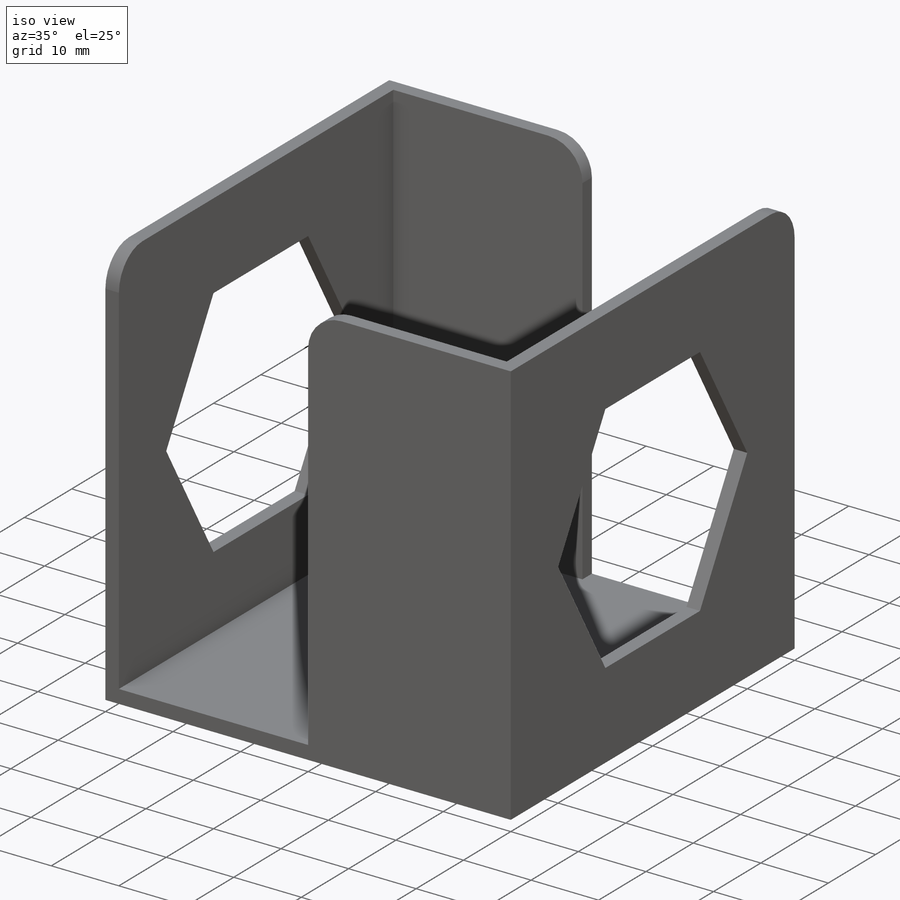
[diagram: iso view]
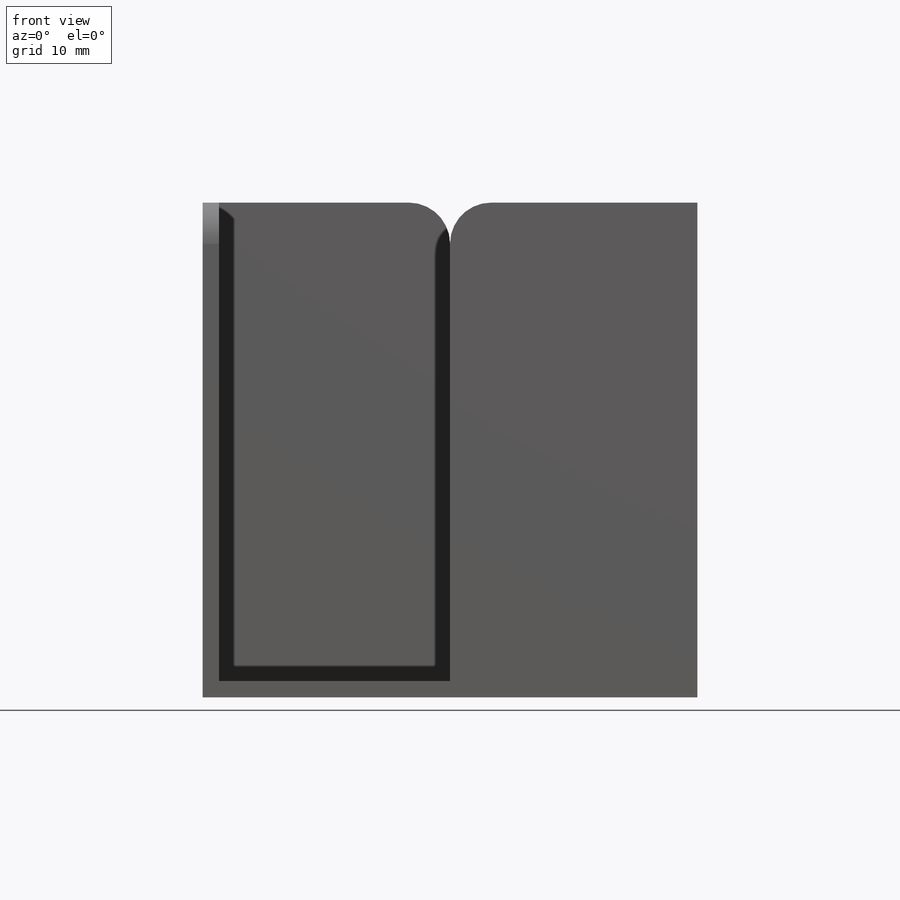
[diagram: front view]
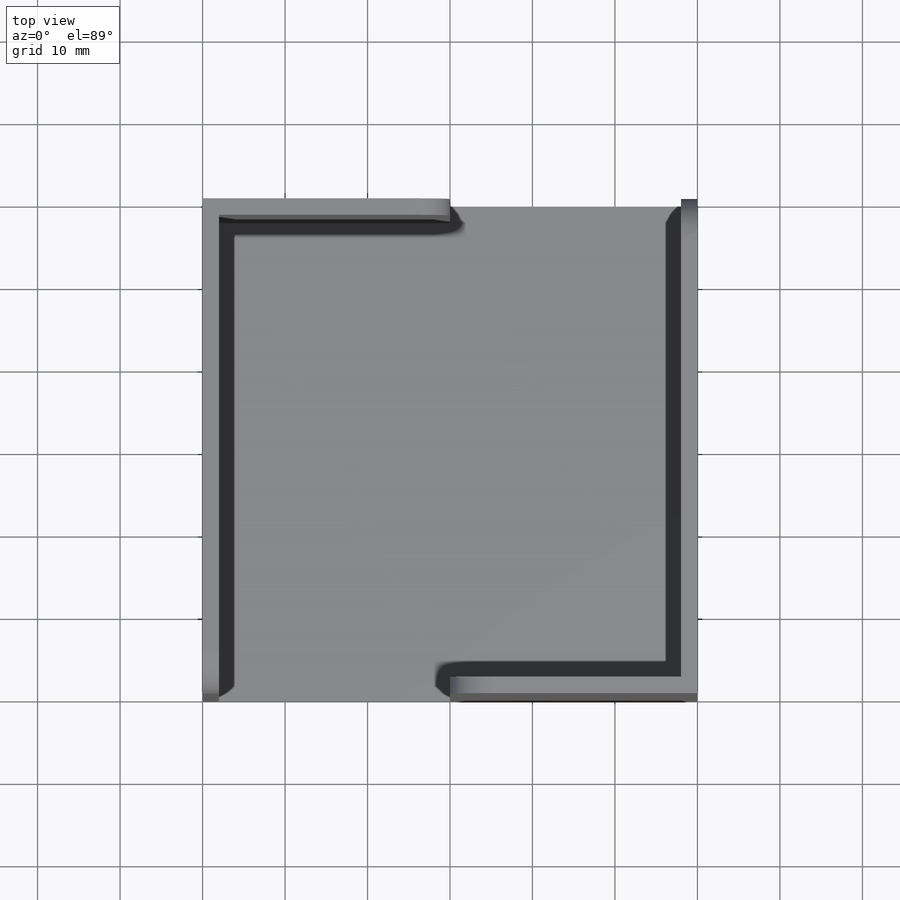
[diagram: top view]
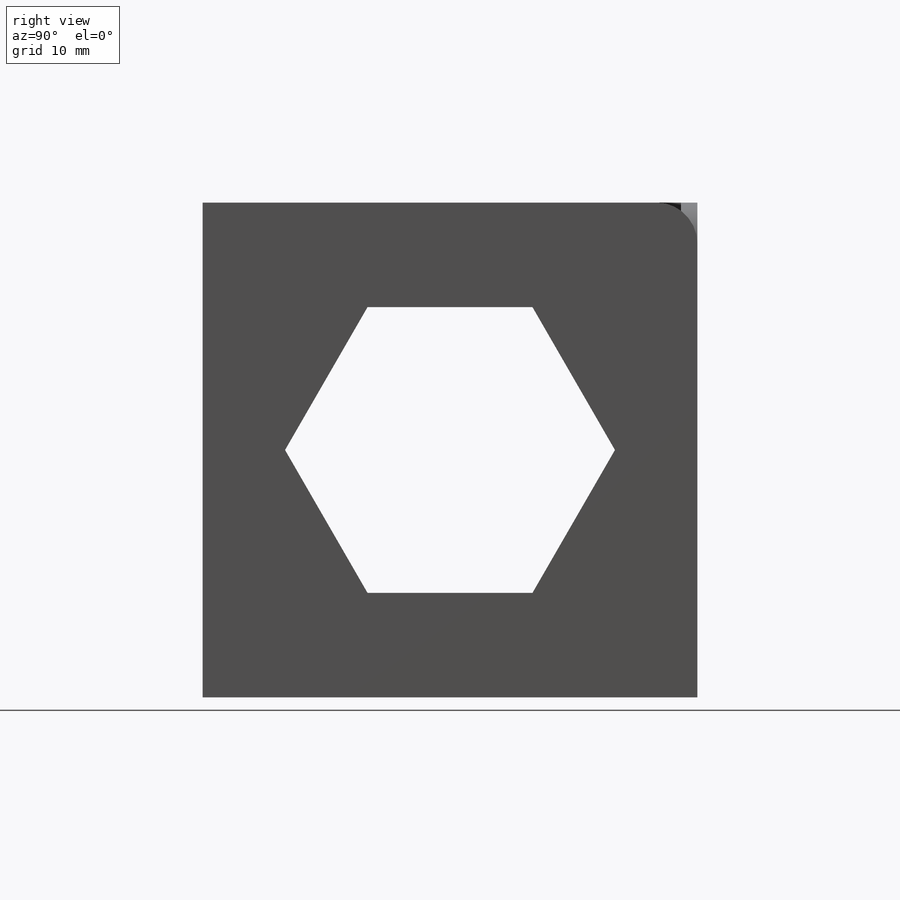
[diagram: right view]
SOLIDWORKS PART (.sldprt)
format: sldprt  version: not decoded by parser v0  size: 192,512 bytes
history: native  units: mm
features: sketch x4, cut_extrude x3, material x1, extrude x1, shell x1, fillet x1 (+16 scaffold rows collapsed)
feature tree (27):
  scaffold x16  (default folders/planes/origin — collapsed)
  material  "Material <not specified>"
  sketch  "Sketch1"  dims[D1=60.0mm]
  extrude  "Cube"  Depth=60mm
  shell  "Shell1"  Thickness=2mm
  sketch  "Sketch2"
  cut_extrude  "Cut Out Left"  [1 undecoded]
  sketch  "Sketch3"
  cut_extrude  "Cut Out Right"  [1 undecoded]
  sketch  "Sketch4"  dims[D1=20.0mm]
  cut_extrude  "Hex Cut"  [1 undecoded]
  fillet  "Fillet1"  Radius=5mm
decode coverage: 5 of 10 modeling features carry decoded parameters
note: 3 parameter values undecoded
summary: no parameter record found for 3 features
note: suppression state not decoded; provenance and decode notes live in map.json
